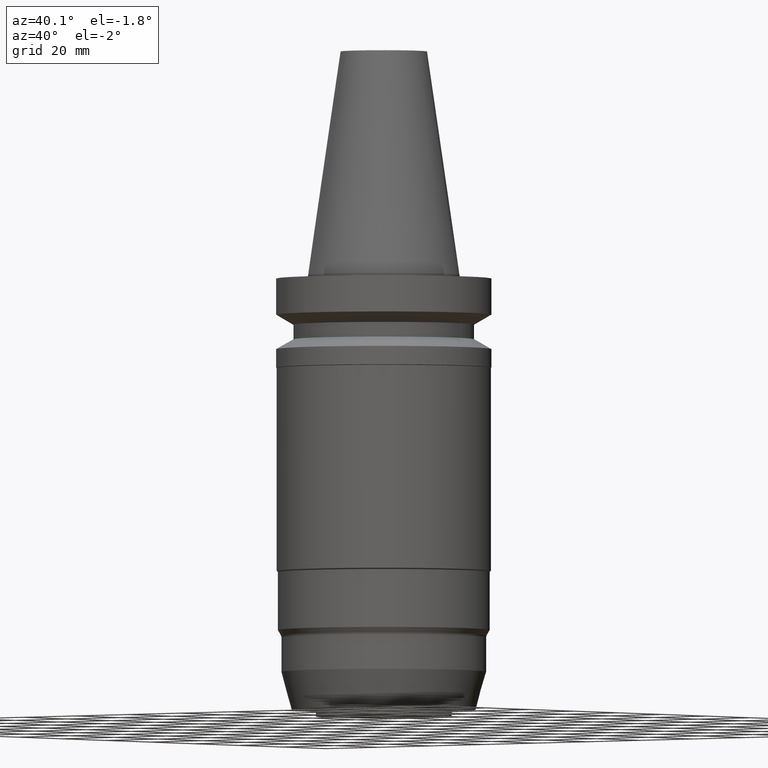
[diagram: clean part render]
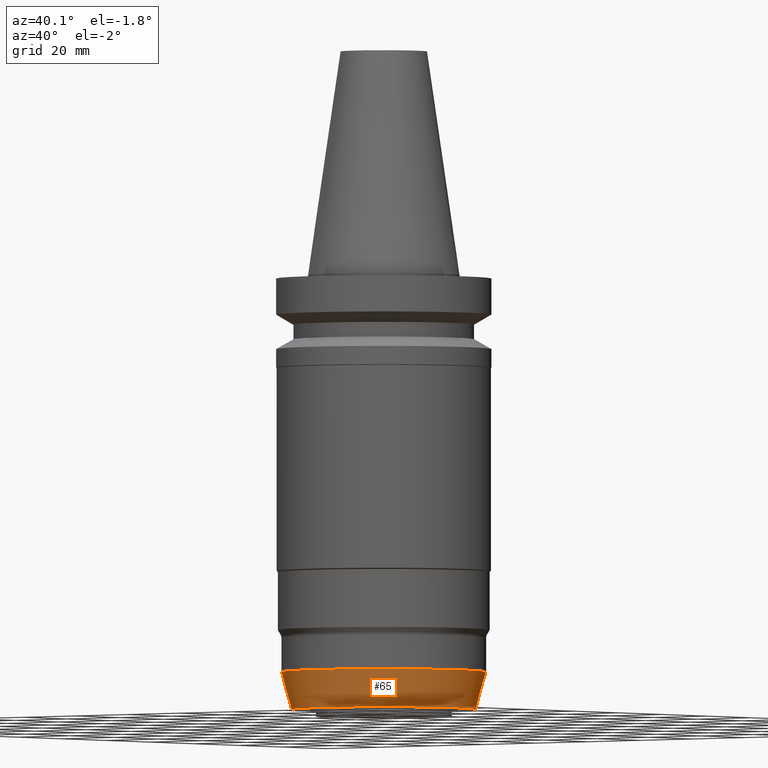
[diagram: same view with one face highlighted and labeled with its STEP entity id]
A machine part, auxiliary view. The second image highlights one B-rep face of the part: STEP entity #65.
In plain terms, the highlighted conical surface has half-angle 15 deg.
Its self-contained STEP definition (entity closure, byte-faithful):
#65=ADVANCED_FACE('Unnamed[1]',(#182,#183),#184,.T.);
#99=EDGE_CURVE('Unnamed[1]',#235,#235,#236,.T.);
#139=EDGE_CURVE('Unnamed[1]',#299,#299,#300,.T.);
#182=FACE_BOUND('',#347,.T.);
#183=FACE_BOUND('',#348,.T.);
#184=CONICAL_SURFACE('',#349,28.4750000000001,0.261799387799168);
#235=VERTEX_POINT('',#414);
#236=CIRCLE('',#415,26.9999999999999);
#299=VERTEX_POINT('',#494);
#300=CIRCLE('',#495,29.9500000000003);
#347=EDGE_LOOP('',(#543));
#348=EDGE_LOOP('',(#544));
#349=AXIS2_PLACEMENT_3D('',#545,#546,#547);
#414=CARTESIAN_POINT('',(7.77650717458566E-015,26.9999999999999,-127.0));
#415=AXIS2_PLACEMENT_3D('',#603,#604,#605);
#494=CARTESIAN_POINT('',(7.10236667341331E-015,29.9500000000003,-115.990450117671));
#495=AXIS2_PLACEMENT_3D('',#675,#676,#677);
#543=ORIENTED_EDGE('',*,*,#99,.F.);
#544=ORIENTED_EDGE('',*,*,#139,.T.);
#545=CARTESIAN_POINT('',(7.43943692399949E-015,6.6406693334031E-014,-121.495225058835));
#546=DIRECTION('',(-6.12323399573677E-017,5.72747493517908E-017,1.0));
#547=DIRECTION('',(-1.32008580749227E-033,1.0,-5.72747493517908E-017));
#603=CARTESIAN_POINT('',(7.77650717458566E-015,6.60914087290381E-014,-127.0));
#604=DIRECTION('',(6.12323399573677E-017,-5.72747493517122E-017,-1.0));
#605=DIRECTION('',(-1.32008580749692E-033,1.0,-5.72747493517122E-017));
#675=CARTESIAN_POINT('',(7.10236667341331E-015,6.67219779390238E-014,-115.990450117671));
#676=DIRECTION('',(6.12323399573677E-017,-5.72747493516459E-017,-1.0));
#677=DIRECTION('',(-1.32008580750005E-033,1.0,-5.72747493516459E-017));